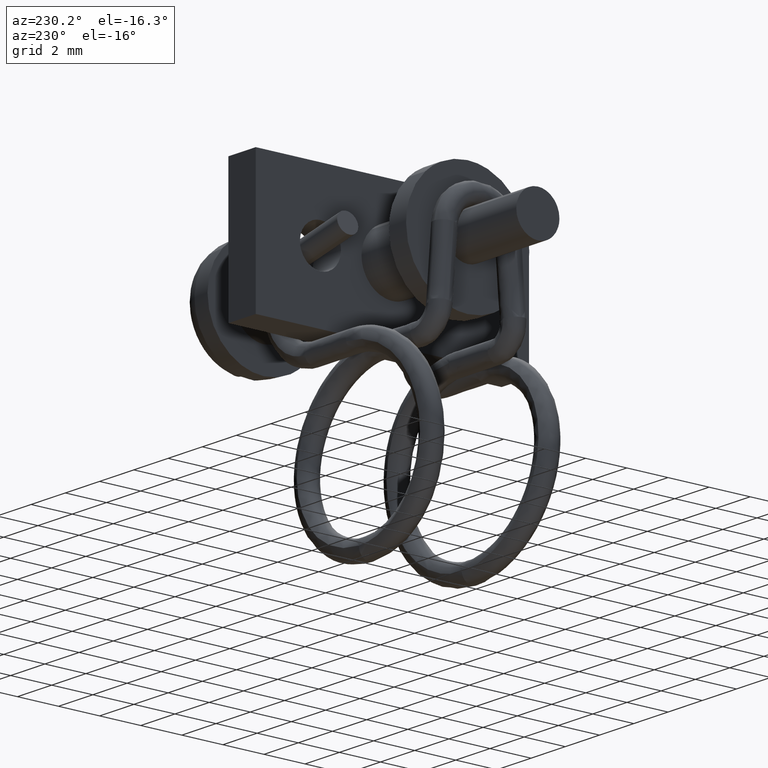
[diagram: clean part render]
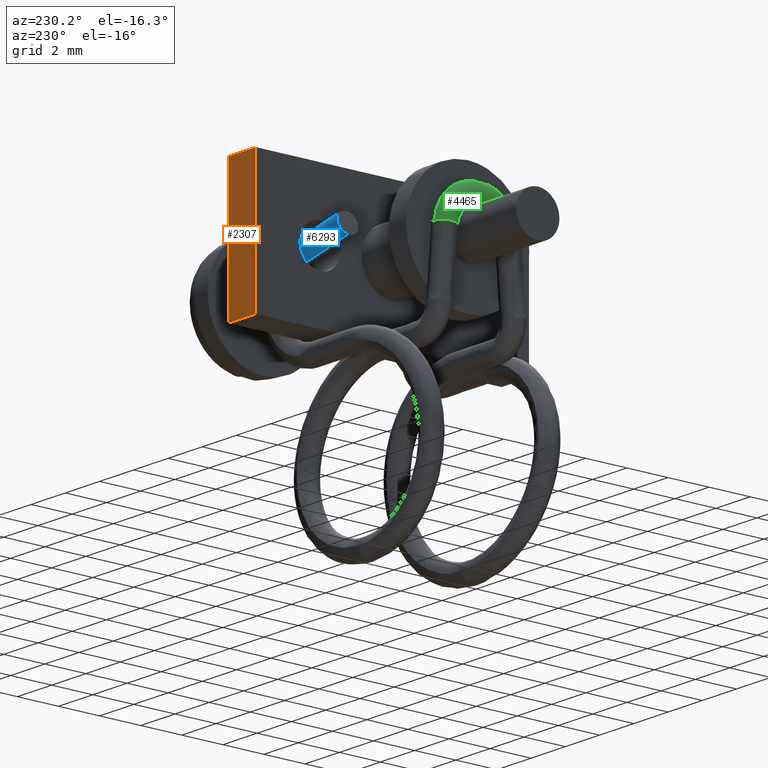
[diagram: same view with three faces highlighted in distinct colors, each labeled with its STEP entity id]
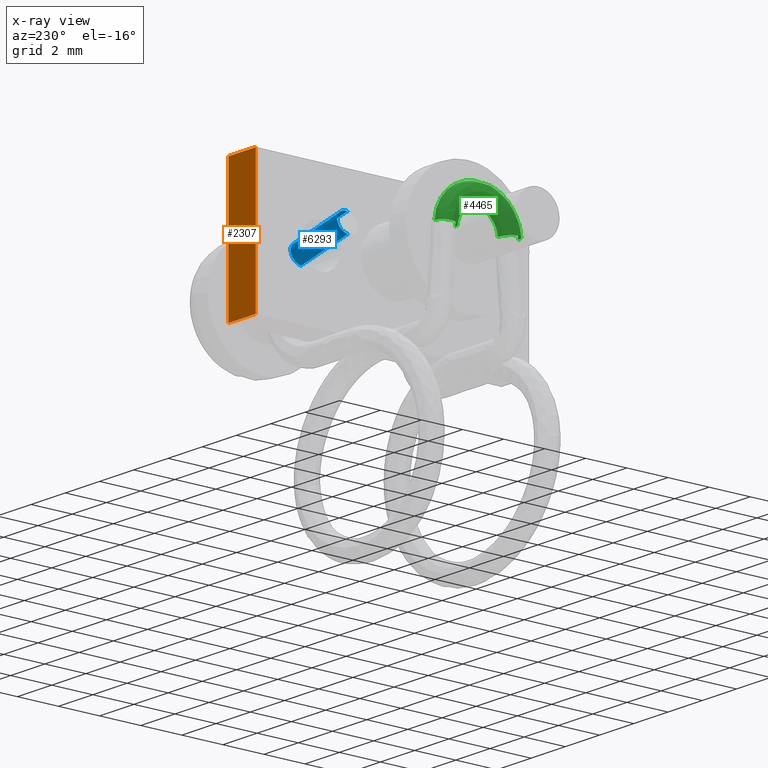
[diagram: x-ray of the same camera — body ghosted, the three highlighted faces saturated]
A machine part, auxiliary view with three faces highlighted in distinct colors.
The next image is the same camera in x-ray (body ghosted, the three faces saturated) — at least one of them is partly hidden behind the body in this view.
Their STEP definitions:

[orange] entity #2307 — the highlighted face is a freeform B-spline surface patch.
#2166=CARTESIAN_POINT('',(-5.900000000000000,6.650000000000000,-3.250000000000170));
#2167=VERTEX_POINT('',#2166);
#2173=CARTESIAN_POINT('',(-5.900000000000000,6.650000000000000,3.249999999999930));
#2174=VERTEX_POINT('',#2173);
#2175=CARTESIAN_POINT('',(-5.900000000000000,6.650000000000000,-3.250000000000170));
#2176=CARTESIAN_POINT('',(-5.900000000000000,6.650000000000000,3.249999999999930));
#2177=QUASI_UNIFORM_CURVE('',1,(#2175,#2176),.UNSPECIFIED.,.F.,.U.);
#2178=EDGE_CURVE('',#2167,#2174,#2177,.T.);
#2226=CARTESIAN_POINT('',(-7.500000000000000,6.650000000000000,3.249999999999930));
#2227=VERTEX_POINT('',#2226);
#2233=CARTESIAN_POINT('',(-7.500000000000000,6.650000000000000,-3.250000000000170));
#2234=VERTEX_POINT('',#2233);
#2235=CARTESIAN_POINT('',(-7.500000000000000,6.650000000000000,-3.250000000000170));
#2236=CARTESIAN_POINT('',(-7.500000000000000,6.650000000000000,3.249999999999930));
#2237=QUASI_UNIFORM_CURVE('',1,(#2235,#2236),.UNSPECIFIED.,.F.,.U.);
#2238=EDGE_CURVE('',#2234,#2227,#2237,.T.);
#2278=CARTESIAN_POINT('',(-7.500000000000000,6.650000000000000,3.249999999999930));
#2279=CARTESIAN_POINT('',(-5.900000000000000,6.650000000000000,3.249999999999930));
#2280=QUASI_UNIFORM_CURVE('',1,(#2278,#2279),.UNSPECIFIED.,.F.,.U.);
#2281=EDGE_CURVE('',#2227,#2174,#2280,.T.);
#2292=CARTESIAN_POINT('',(-7.579919996898889,6.650000000000000,-3.574674987401914));
#2293=CARTESIAN_POINT('',(-7.579919996898889,6.650000000000000,3.574675161745260));
#2294=CARTESIAN_POINT('',(-5.820079960185765,6.650000000000000,-3.574674987401914));
#2295=CARTESIAN_POINT('',(-5.820079960185765,6.650000000000000,3.574675161745260));
#2296=B_SPLINE_SURFACE_WITH_KNOTS('',1,1,((#2292,#2294),(#2293,#2295)),.UNSPECIFIED.,.F.,.F.,.U.,(2,2),(2,2),(0.0,7.149350149147174),(0.041708334948495,0.958291687403247),.UNSPECIFIED.);
#2297=ORIENTED_EDGE('',*,*,#2178,.F.);
#2298=CARTESIAN_POINT('',(-7.500000000000000,6.650000000000000,-3.250000000000170));
#2299=CARTESIAN_POINT('',(-5.900000000000000,6.650000000000000,-3.250000000000170));
#2300=QUASI_UNIFORM_CURVE('',1,(#2298,#2299),.UNSPECIFIED.,.F.,.U.);
#2301=EDGE_CURVE('',#2234,#2167,#2300,.T.);
#2302=ORIENTED_EDGE('',*,*,#2301,.F.);
#2303=ORIENTED_EDGE('',*,*,#2238,.T.);
#2304=ORIENTED_EDGE('',*,*,#2281,.T.);
#2305=EDGE_LOOP('',(#2297,#2302,#2303,#2304));
#2306=FACE_OUTER_BOUND('',#2305,.T.);
#2307=ADVANCED_FACE('',(#2306),#2296,.T.);

[blue] entity #6293 — the highlighted face is a freeform B-spline surface patch.
#6032=CARTESIAN_POINT('',(-6.289408197136313,3.950366743837648,-0.026013404708507));
#6033=VERTEX_POINT('',#6032);
#6047=CARTESIAN_POINT('',(-6.203171119911417,3.372932282074216,0.419327791672859));
#6048=VERTEX_POINT('',#6047);
#6049=CARTESIAN_POINT('',(-6.203171119911417,3.372932282074216,0.419327791672859));
#6050=CARTESIAN_POINT('',(-6.202513771568942,3.385845205143047,0.421341440252223));
#6051=CARTESIAN_POINT('',(-6.201964515556442,3.398844901608556,0.422847690914444));
#6052=CARTESIAN_POINT('',(-6.197161963253205,3.542354927770255,0.433637602950024));
#6053=CARTESIAN_POINT('',(-6.204091431479288,3.676338105797971,0.390867098071780));
#6054=CARTESIAN_POINT('',(-6.236628304826470,3.875701665297947,0.224317356793801));
#6055=CARTESIAN_POINT('',(-6.262035353324414,3.939854399321293,0.101563705839619));
#6056=CARTESIAN_POINT('',(-6.289408197136313,3.950366743837648,-0.026013404708507));
#6057=B_SPLINE_CURVE_WITH_KNOTS('',3,(#6049,#6050,#6051,#6052,#6053,#6054,#6055,#6056),.UNSPECIFIED.,.F.,.U.,(4,2,2,4),(0.737495067605383,0.750000000000000,0.875000000000000,1.0),.UNSPECIFIED.);
#6058=EDGE_CURVE('',#6048,#6033,#6057,.T.);
#6204=CARTESIAN_POINT('',(-6.409003858150236,3.531172963114064,-0.546316932729523));
#6205=VERTEX_POINT('',#6204);
#6217=CARTESIAN_POINT('',(-6.289408197136313,3.950366743837648,-0.026013404708507));
#6218=CARTESIAN_POINT('',(-6.316781171321800,3.960879190410529,-0.153591127037694));
#6219=CARTESIAN_POINT('',(-6.345783507263273,3.917622314224404,-0.284424308630208));
#6220=CARTESIAN_POINT('',(-6.388425982223954,3.756478889278649,-0.469009919745456));
#6221=CARTESIAN_POINT('',(-6.403088821353866,3.647337167604898,-0.528195024942311));
#6222=CARTESIAN_POINT('',(-6.409003858150236,3.531172963114064,-0.546316932729523));
#6223=B_SPLINE_CURVE_WITH_KNOTS('',3,(#6217,#6218,#6219,#6220,#6221,#6222),.UNSPECIFIED.,.F.,.U.,(4,2,4),(0.0,0.125000000000000,0.237495067605388),.UNSPECIFIED.);
#6224=EDGE_CURVE('',#6033,#6205,#6223,.T.);
#6232=CARTESIAN_POINT('',(-6.340411193490622,3.508372313711263,-0.564213272739363));
#6233=CARTESIAN_POINT('',(-9.264684682487792,3.558747027085570,0.067367404023976));
#6234=CARTESIAN_POINT('',(-6.318812521370798,4.036283517264186,-0.506315604148724));
#6235=CARTESIAN_POINT('',(-9.243086010367964,4.086658230638491,0.125265072614615));
#6236=CARTESIAN_POINT('',(-6.209879821613098,3.943025528808157,0.005490507591748));
#6237=CARTESIAN_POINT('',(-9.134153310610266,3.993400242182463,0.637071184355086));
#6238=CARTESIAN_POINT('',(-6.100947121855402,3.849767540352130,0.517296619332221));
#6239=CARTESIAN_POINT('',(-9.025220610852573,3.900142253726435,1.148877296095559));
#6240=CARTESIAN_POINT('',(-6.135846158430823,3.333242864789605,0.396908919448044));
#6241=CARTESIAN_POINT('',(-9.060119647427992,3.383617578163912,1.028489596211382));
#6249=(BOUNDED_SURFACE()B_SPLINE_SURFACE(1,2,((#6232,#6234,#6236,#6238,#6240),(#6233,#6235,#6237,#6239,#6241)),.UNSPECIFIED.,.F.,.F.,.U.)B_SPLINE_SURFACE_WITH_KNOTS((2,2),(3,2,3),(0.0,2.992124195527329),(0.0,1.0,2.0),.UNSPECIFIED.)GEOMETRIC_REPRESENTATION_ITEM()RATIONAL_B_SPLINE_SURFACE(((1.0,0.685182990326359,1.0,0.685182990326359,1.0),(1.0,0.685182990326359,1.0,0.685182990326359,1.0)))REPRESENTATION_ITEM('')SURFACE());
#6250=ORIENTED_EDGE('',*,*,#6224,.T.);
#6251=CARTESIAN_POINT('',(-9.192375785115711,3.579125409302861,0.054800973310401));
#6252=VERTEX_POINT('',#6251);
#6253=CARTESIAN_POINT('',(-9.192375785115711,3.579125409302861,0.054800973310401));
#6254=CARTESIAN_POINT('',(-6.409003858150236,3.531172963114064,-0.546316932729523));
#6255=QUASI_UNIFORM_CURVE('',1,(#6253,#6254),.UNSPECIFIED.,.F.,.U.);
#6256=EDGE_CURVE('',#6252,#6205,#6255,.T.);
#6257=ORIENTED_EDGE('',*,*,#6256,.F.);
#6258=CARTESIAN_POINT('',(-9.072773802368603,3.998314121231395,0.575134175791944));
#6259=VERTEX_POINT('',#6258);
#6260=CARTESIAN_POINT('',(-9.072773802368603,3.998314121231395,0.575134175791944));
#6261=CARTESIAN_POINT('',(-9.085775035188840,4.003364593757724,0.514534512162994));
#6262=CARTESIAN_POINT('',(-9.110045616625078,3.991122994428427,0.403135995096871));
#6263=CARTESIAN_POINT('',(-9.143462952371424,3.918504666767316,0.254202842112464));
#6264=CARTESIAN_POINT('',(-9.167430663705705,3.818235968552577,0.151227658883276));
#6265=CARTESIAN_POINT('',(-9.184031998496629,3.700221003038896,0.083774877763129));
#6266=CARTESIAN_POINT('',(-9.190255545640202,3.621329978866180,0.061251640887060));
#6267=CARTESIAN_POINT('',(-9.192375785115711,3.579125409302861,0.054800973310401));
#6268=B_SPLINE_CURVE_WITH_KNOTS('',3,(#6260,#6261,#6262,#6263,#6264,#6265,#6266,#6267),.UNSPECIFIED.,.F.,.U.,(4,1,1,1,1,4),(0.000000040522220,0.186536318733173,0.338104895140399,0.501313109073736,0.617904641236284,0.746145153365888),.UNSPECIFIED.);
#6269=EDGE_CURVE('',#6259,#6252,#6268,.T.);
#6270=ORIENTED_EDGE('',*,*,#6269,.F.);
#6271=CARTESIAN_POINT('',(-8.986530403410509,3.420874590672920,1.020505046633897));
#6272=VERTEX_POINT('',#6271);
#6273=CARTESIAN_POINT('',(-8.986530403410509,3.420874590672920,1.020505046633897));
#6274=CARTESIAN_POINT('',(-8.982881364159155,3.492967904730814,1.031650271575304));
#6275=CARTESIAN_POINT('',(-8.982533951227900,3.593907381974959,1.025207916767100));
#6276=CARTESIAN_POINT('',(-8.990322465578519,3.719039774246068,0.979165889994366));
#6277=CARTESIAN_POINT('',(-8.999234629158270,3.800657691230820,0.931391972947210));
#6278=CARTESIAN_POINT('',(-9.015033709902028,3.889702611103237,0.851138654328988));
#6279=CARTESIAN_POINT('',(-9.039253790062690,3.967099278949116,0.732824437280696));
#6280=CARTESIAN_POINT('',(-9.061096363223792,3.993859856234858,0.629557006156508));
#6281=CARTESIAN_POINT('',(-9.072773802368603,3.998314121231395,0.575134175791944));
#6282=B_SPLINE_CURVE_WITH_KNOTS('',3,(#6273,#6274,#6275,#6276,#6277,#6278,#6279,#6280,#6281),.UNSPECIFIED.,.F.,.U.,(4,1,1,1,1,1,4),(0.000000034306692,0.219059088185754,0.296373636525639,0.399463185228100,0.502541967698633,0.657177631213571,0.824690886447003),.UNSPECIFIED.);
#6283=EDGE_CURVE('',#6272,#6259,#6282,.T.);
#6284=ORIENTED_EDGE('',*,*,#6283,.F.);
#6285=CARTESIAN_POINT('',(-8.986530403410509,3.420874590672920,1.020505046633897));
#6286=CARTESIAN_POINT('',(-6.203171119911417,3.372932282074216,0.419327791672859));
#6287=QUASI_UNIFORM_CURVE('',1,(#6285,#6286),.UNSPECIFIED.,.F.,.U.);
#6288=EDGE_CURVE('',#6272,#6048,#6287,.T.);
#6289=ORIENTED_EDGE('',*,*,#6288,.T.);
#6290=ORIENTED_EDGE('',*,*,#6058,.T.);
#6291=EDGE_LOOP('',(#6250,#6257,#6270,#6284,#6289,#6290));
#6292=FACE_OUTER_BOUND('',#6291,.T.);
#6293=ADVANCED_FACE('',(#6292),#6249,.T.);

[green] entity #4465 — the highlighted face is a freeform B-spline surface patch.
#4181=CARTESIAN_POINT('',(-12.898458666863201,-1.506105852220737,0.118627656236959));
#4182=VERTEX_POINT('',#4181);
#4188=CARTESIAN_POINT('',(-12.400000000000000,-1.046758063788702,0.082447291573398));
#4189=VERTEX_POINT('',#4188);
#4190=CARTESIAN_POINT('',(-12.400000000000000,-1.046758063788702,0.082447291573398));
#4191=CARTESIAN_POINT('',(-12.462186263507441,-1.046698713134797,0.082442616840319));
#4192=CARTESIAN_POINT('',(-12.567067730793561,-1.066533518624188,0.084004898217762));
#4193=CARTESIAN_POINT('',(-12.687319552015570,-1.132244580683817,0.089180606575611));
#4194=CARTESIAN_POINT('',(-12.780996451375970,-1.214603514333552,0.095667578599403));
#4195=CARTESIAN_POINT('',(-12.863510714965050,-1.333998343079412,0.105071669686276));
#4196=CARTESIAN_POINT('',(-12.893633531010201,-1.444302608675366,0.113759745810101));
#4197=CARTESIAN_POINT('',(-12.898458666863201,-1.506105852220737,0.118627656236959));
#4198=B_SPLINE_CURVE_WITH_KNOTS('',3,(#4190,#4191,#4192,#4193,#4194,#4195,#4196,#4197),.UNSPECIFIED.,.F.,.U.,(4,1,1,1,1,4),(0.000000040523744,0.186536318735543,0.314781218075097,0.408040298751435,0.559608875159579,0.746145153371693),.UNSPECIFIED.);
#4199=EDGE_CURVE('',#4189,#4182,#4198,.T.);
#4245=CARTESIAN_POINT('',(-12.400000000000000,-2.043670488059455,0.160968742979248));
#4246=VERTEX_POINT('',#4245);
#4258=CARTESIAN_POINT('',(-12.898458666863201,-1.506105852220737,0.118627656236959));
#4259=CARTESIAN_POINT('',(-12.903585005847910,-1.570142941901085,0.123671514757617));
#4260=CARTESIAN_POINT('',(-12.891947091128760,-1.669788628324346,0.131520071695815));
#4261=CARTESIAN_POINT('',(-12.838439356219549,-1.792113904333263,0.141154978415799));
#4262=CARTESIAN_POINT('',(-12.778456936150960,-1.876360837807854,0.147790658072170));
#4263=CARTESIAN_POINT('',(-12.696111302857050,-1.952435290061817,0.153782635161086));
#4264=CARTESIAN_POINT('',(-12.571767345850169,-2.022686684659961,0.159315961191371));
#4265=CARTESIAN_POINT('',(-12.464436049952170,-2.043730987811497,0.160973508220632));
#4266=CARTESIAN_POINT('',(-12.400000000000000,-2.043670488059455,0.160968742979248));
#4267=B_SPLINE_CURVE_WITH_KNOTS('',3,(#4258,#4259,#4260,#4261,#4262,#4263,#4264,#4265,#4266),.UNSPECIFIED.,.F.,.U.,(4,1,1,1,1,1,4),(0.000000034306713,0.193287039332858,0.296373636522898,0.399463185224422,0.502541967694020,0.631404226972256,0.824690886439384),.UNSPECIFIED.);
#4268=EDGE_CURVE('',#4182,#4246,#4267,.T.);
#4307=CARTESIAN_POINT('',(-12.400000000000000,2.043670156747557,0.160972949338415));
#4308=VERTEX_POINT('',#4307);
#4309=CARTESIAN_POINT('',(-12.400000000000000,-0.000002370555772,2.049999999998312));
#4310=VERTEX_POINT('',#4309);
#4311=CARTESIAN_POINT('',(-12.400000000000000,2.043670156747557,0.160972949338415));
#4312=CARTESIAN_POINT('',(-12.400000000000000,2.033676149403478,0.288037934387405));
#4313=CARTESIAN_POINT('',(-12.400000000000031,1.996707094287953,0.500871692167089));
#4314=CARTESIAN_POINT('',(-12.399999999999959,1.885729910738597,0.825687819416165));
#4315=CARTESIAN_POINT('',(-12.400000000000130,1.717371417856950,1.143943013633083));
#4316=CARTESIAN_POINT('',(-12.399999999999810,1.479239253706211,1.435532149461458));
#4317=CARTESIAN_POINT('',(-12.400000000000141,1.169002086110853,1.699664430135854));
#4318=CARTESIAN_POINT('',(-12.400000000000089,0.833582865747515,1.888596297011567));
#4319=CARTESIAN_POINT('',(-12.399999999999860,0.422190888239202,2.019858093822896));
#4320=CARTESIAN_POINT('',(-12.400000000000031,0.151355756766479,2.050029827275428));
#4321=CARTESIAN_POINT('',(-12.400000000000000,-0.000002370555772,2.049999999998312));
#4322=B_SPLINE_CURVE_WITH_KNOTS('',3,(#4311,#4312,#4313,#4314,#4315,#4316,#4317,#4318,#4319,#4320,#4321),.UNSPECIFIED.,.F.,.U.,(4,1,1,1,1,1,1,1,4),(0.000000019955215,0.382371336193678,0.645260143889244,1.027641072982479,1.457820019905861,1.768489812539124,2.246462244369180,2.604942072335266,3.059013327116523),.UNSPECIFIED.);
#4323=EDGE_CURVE('',#4308,#4310,#4322,.T.);
#4325=CARTESIAN_POINT('',(-12.400000000000000,-0.000002370555772,2.049999999998312));
#4326=CARTESIAN_POINT('',(-12.399999999999990,-0.183229763702565,2.050053203919461));
#4327=CARTESIAN_POINT('',(-12.400000000000050,-0.469977367258017,2.011293651183955));
#4328=CARTESIAN_POINT('',(-12.399999999999959,-0.830993932516033,1.881967198835634));
#4329=CARTESIAN_POINT('',(-12.400000000000020,-1.126986757664484,1.724242133005179));
#4330=CARTESIAN_POINT('',(-12.400000000000080,-1.418210139078869,1.498867904558092));
#4331=CARTESIAN_POINT('',(-12.399999999999910,-1.664575820735827,1.214497105295896));
#4332=CARTESIAN_POINT('',(-12.400000000000009,-1.836817168086123,0.926534025474633));
#4333=CARTESIAN_POINT('',(-12.400000000000000,-1.977625114521620,0.587250558260010));
#4334=CARTESIAN_POINT('',(-12.399999999999990,-2.030581214045727,0.327748676644292));
#4335=CARTESIAN_POINT('',(-12.400000000000000,-2.043670488059455,0.160968742979248));
#4336=B_SPLINE_CURVE_WITH_KNOTS('',3,(#4325,#4326,#4327,#4328,#4329,#4330,#4331,#4332,#4333,#4334,#4335),.UNSPECIFIED.,.F.,.U.,(4,1,1,1,1,1,1,1,4),(0.000000019955452,0.549666208788051,0.860347691357930,1.147134900805054,1.553398465041855,1.959677475199278,2.270360882905159,2.557147287352381,3.059012805378909),.UNSPECIFIED.);
#4337=EDGE_CURVE('',#4310,#4246,#4336,.T.);
#4341=CARTESIAN_POINT('',(-12.400000000000000,-0.000001496887141,1.049999999998690));
#4342=VERTEX_POINT('',#4341);
#4343=CARTESIAN_POINT('',(-12.400000000000000,-0.000001496887141,1.049999999998690));
#4344=CARTESIAN_POINT('',(-12.399999999999981,-0.102010977939066,1.050040963545813));
#4345=CARTESIAN_POINT('',(-12.400000000000080,-0.297839535673130,1.021237786524783));
#4346=CARTESIAN_POINT('',(-12.399999999999840,-0.541580805247436,0.910779603609055));
#4347=CARTESIAN_POINT('',(-12.400000000000100,-0.703691574599908,0.785274420183451));
#4348=CARTESIAN_POINT('',(-12.400000000000009,-0.824099114254104,0.657254577712060));
#4349=CARTESIAN_POINT('',(-12.399999999999840,-0.917091777698189,0.522262895942652));
#4350=CARTESIAN_POINT('',(-12.400000000000150,-1.007215297619146,0.324888371124490));
#4351=CARTESIAN_POINT('',(-12.399999999999871,-1.039421846228330,0.176009223166545));
#4352=CARTESIAN_POINT('',(-12.400000000000000,-1.046758063788702,0.082447291573398));
#4353=B_SPLINE_CURVE_WITH_KNOTS('',3,(#4343,#4344,#4345,#4346,#4347,#4348,#4349,#4350,#4351,#4352),.UNSPECIFIED.,.F.,.U.,(4,1,1,1,1,1,1,4),(0.000000028665980,0.306017284025277,0.587556062568297,0.795636675134722,0.918048116749247,1.113903795767553,1.285275020596818,1.566811267918465),.UNSPECIFIED.);
#4354=EDGE_CURVE('',#4342,#4189,#4353,.T.);
#4356=CARTESIAN_POINT('',(-12.400000000000000,1.046757885162688,0.082449559424985));
#4357=VERTEX_POINT('',#4356);
#4358=CARTESIAN_POINT('',(-12.400000000000000,1.046757885162688,0.082449559424985));
#4359=CARTESIAN_POINT('',(-12.400000000000000,1.039734710616154,0.171940977959971));
#4360=CARTESIAN_POINT('',(-12.400000000000039,1.008433114256256,0.320896601006855));
#4361=CARTESIAN_POINT('',(-12.399999999999970,0.922770099818948,0.511414818793304));
#4362=CARTESIAN_POINT('',(-12.400000000000020,0.806358750288648,0.684737298383395));
#4363=CARTESIAN_POINT('',(-12.400000000000000,0.637924877023304,0.847879567163633));
#4364=CARTESIAN_POINT('',(-12.399999999999990,0.420148904637623,0.972203494682152));
#4365=CARTESIAN_POINT('',(-12.400000000000020,0.204008179798121,1.037026086539111));
#4366=CARTESIAN_POINT('',(-12.400000000000009,0.065281380072120,1.050005660263772));
#4367=CARTESIAN_POINT('',(-12.400000000000000,-0.000001496887141,1.049999999998690));
#4368=B_SPLINE_CURVE_WITH_KNOTS('',3,(#4358,#4359,#4360,#4361,#4362,#4363,#4364,#4365,#4366,#4367),.UNSPECIFIED.,.F.,.U.,(4,1,1,1,1,1,1,4),(0.000000028665970,0.269292673770844,0.452907817466321,0.624282723071141,0.893568959814181,1.150627220330998,1.370962043936523,1.566811986831840),.UNSPECIFIED.);
#4369=EDGE_CURVE('',#4357,#4342,#4368,.T.);
#4399=CARTESIAN_POINT('',(-12.399999999999999,1.048242009173857,-0.060734588191438));
#4400=CARTESIAN_POINT('',(-12.400000000000000,1.112597384376748,1.049999999999853));
#4401=CARTESIAN_POINT('',(-12.400000000000000,0.0,1.049999999999853));
#4402=CARTESIAN_POINT('',(-12.400000000000000,-1.112599683193938,1.049999999999853));
#4403=CARTESIAN_POINT('',(-12.400000000000002,-1.048241883893780,-0.060736750410653));
#4404=CARTESIAN_POINT('',(-12.900000000000000,1.048242009173857,-0.060734588191438));
#4405=CARTESIAN_POINT('',(-12.900000000000002,1.112597384376748,1.049999999999853));
#4406=CARTESIAN_POINT('',(-12.900000000000002,0.0,1.049999999999853));
#4407=CARTESIAN_POINT('',(-12.899999999999999,-1.112599683193937,1.049999999999853));
#4408=CARTESIAN_POINT('',(-12.900000000000000,-1.048241883893780,-0.060736750410653));
#4409=CARTESIAN_POINT('',(-12.899999999999997,1.547404870685301,-0.089655820663569));
#4410=CARTESIAN_POINT('',(-12.900000000000000,1.642405662651478,1.549999999999852));
#4411=CARTESIAN_POINT('',(-12.900000000000000,0.0,1.549999999999853));
#4412=CARTESIAN_POINT('',(-12.900000000000002,-1.642409056143519,1.549999999999853));
#4413=CARTESIAN_POINT('',(-12.899999999999995,-1.547404685748045,-0.089659012510982));
#4414=CARTESIAN_POINT('',(-12.900000000000000,2.046567732196745,-0.118577053135701));
#4415=CARTESIAN_POINT('',(-12.900000000000002,2.172213940926209,2.049999999999853));
#4416=CARTESIAN_POINT('',(-12.900000000000002,0.0,2.049999999999854));
#4417=CARTESIAN_POINT('',(-12.899999999999999,-2.172218429093101,2.049999999999853));
#4418=CARTESIAN_POINT('',(-12.900000000000000,-2.046567487602310,-0.118581274611312));
#4419=CARTESIAN_POINT('',(-12.399999999999999,2.046567732196745,-0.118577053135700));
#4420=CARTESIAN_POINT('',(-12.400000000000000,2.172213940926208,2.049999999999853));
#4421=CARTESIAN_POINT('',(-12.400000000000000,0.0,2.049999999999853));
#4422=CARTESIAN_POINT('',(-12.400000000000000,-2.172218429093102,2.049999999999853));
#4423=CARTESIAN_POINT('',(-12.400000000000002,-2.046567487602309,-0.118581274611312));
#4431=(BOUNDED_SURFACE()B_SPLINE_SURFACE(2,2,((#4399,#4404,#4409,#4414,#4419),(#4400,#4405,#4410,#4415,#4420),(#4401,#4406,#4411,#4416,#4421),(#4402,#4407,#4412,#4417,#4422),(#4403,#4408,#4413,#4418,#4423)),.UNSPECIFIED.,.F.,.F.,.U.)B_SPLINE_SURFACE_WITH_KNOTS((3,2,3),(3,2,3),(0.0,3.536366185099278,7.072737357482417),(0.0,0.828427124746191,1.656854249492383),.UNSPECIFIED.)GEOMETRIC_REPRESENTATION_ITEM()RATIONAL_B_SPLINE_SURFACE(((0.988981012256727,0.699315180231467,0.988981012256727,0.699315180231467,0.988981012256727),(0.682559855516249,0.482642702401250,0.682559855516249,0.482642702401250,0.682559855516249),(1.0,0.707106781186548,1.0,0.707106781186548,1.0),(0.682559407835204,0.482642385842947,0.682559407835204,0.482642385842947,0.682559407835204),(0.988981876540233,0.699315791372196,0.988981876540233,0.699315791372196,0.988981876540233)))REPRESENTATION_ITEM('')SURFACE());
#4432=ORIENTED_EDGE('',*,*,#4337,.F.);
#4433=ORIENTED_EDGE('',*,*,#4323,.F.);
#4434=CARTESIAN_POINT('',(-12.898458631837610,1.506105159676610,0.118630782357456));
#4435=VERTEX_POINT('',#4434);
#4436=CARTESIAN_POINT('',(-12.898458631837610,1.506105159676610,0.118630782357456));
#4437=CARTESIAN_POINT('',(-12.904294037021749,1.578687628520726,0.124347856632071));
#4438=CARTESIAN_POINT('',(-12.889983039851989,1.678506946645042,0.132210284913255));
#4439=CARTESIAN_POINT('',(-12.833433047966331,1.799131891834455,0.141711501694684));
#4440=CARTESIAN_POINT('',(-12.778455680795270,1.876357440789952,0.147794295602186));
#4441=CARTESIAN_POINT('',(-12.689787094586210,1.958305241484198,0.154249045222464));
#4442=CARTESIAN_POINT('',(-12.563199319255229,2.025555505947918,0.159546119888694));
#4443=CARTESIAN_POINT('',(-12.455839355294360,2.043700182948131,0.160975314400139));
#4444=CARTESIAN_POINT('',(-12.400000000000000,2.043670156747557,0.160972949338415));
#4445=B_SPLINE_CURVE_WITH_KNOTS('',3,(#4436,#4437,#4438,#4439,#4440,#4441,#4442,#4443,#4444),.UNSPECIFIED.,.F.,.U.,(4,1,1,1,1,1,4),(0.000000034306843,0.219059206745943,0.296373796931304,0.399463401429039,0.502542239679345,0.657177986894617,0.824691332787376),.UNSPECIFIED.);
#4446=EDGE_CURVE('',#4435,#4308,#4445,.T.);
#4447=ORIENTED_EDGE('',*,*,#4446,.F.);
#4448=CARTESIAN_POINT('',(-12.400000000000000,1.046757885162688,0.082449559424985));
#4449=CARTESIAN_POINT('',(-12.462185333881219,1.046700619562639,0.082445048808384));
#4450=CARTESIAN_POINT('',(-12.582617237138720,1.069452926156779,0.084237170635996));
#4451=CARTESIAN_POINT('',(-12.720717438458900,1.153447555217668,0.090853141967051));
#4452=CARTESIAN_POINT('',(-12.804310006880289,1.246380602842075,0.098173162135780));
#4453=CARTESIAN_POINT('',(-12.869723741176969,1.356839012875393,0.106873595511402));
#4454=CARTESIAN_POINT('',(-12.893642102117390,1.444294057336279,0.113762131997347));
#4455=CARTESIAN_POINT('',(-12.898458631837610,1.506105159676610,0.118630782357456));
#4456=B_SPLINE_CURVE_WITH_KNOTS('',3,(#4448,#4449,#4450,#4451,#4452,#4453,#4454,#4455),.UNSPECIFIED.,.F.,.U.,(4,1,1,1,1,4),(0.000000040521882,0.186536207146849,0.361420087119839,0.477997585006462,0.559608540396853,0.746144707021884),.UNSPECIFIED.);
#4457=EDGE_CURVE('',#4357,#4435,#4456,.T.);
#4458=ORIENTED_EDGE('',*,*,#4457,.F.);
#4459=ORIENTED_EDGE('',*,*,#4369,.T.);
#4460=ORIENTED_EDGE('',*,*,#4354,.T.);
#4461=ORIENTED_EDGE('',*,*,#4199,.T.);
#4462=ORIENTED_EDGE('',*,*,#4268,.T.);
#4463=EDGE_LOOP('',(#4432,#4433,#4447,#4458,#4459,#4460,#4461,#4462));
#4464=FACE_OUTER_BOUND('',#4463,.T.);
#4465=ADVANCED_FACE('',(#4464),#4431,.T.);